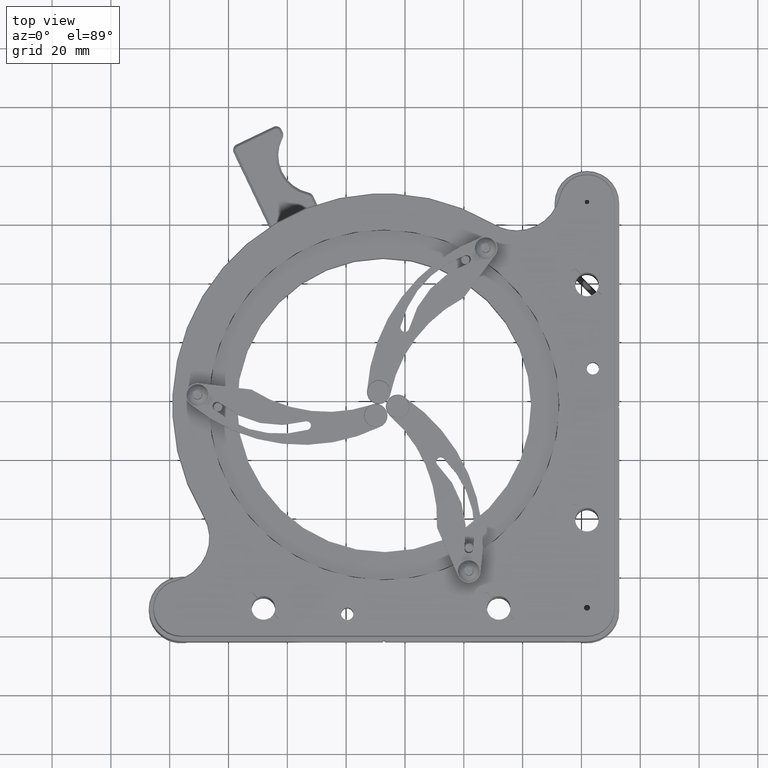
[diagram: clean part render]
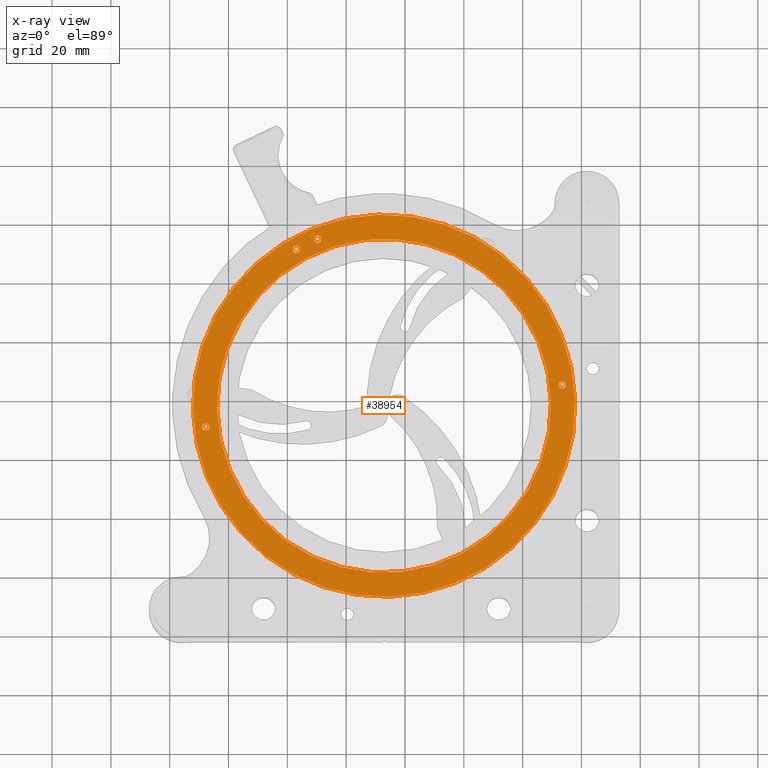
[diagram: x-ray — body ghosted, one internal face saturated and labeled with its STEP entity id]
A machine part, top view, then the same camera in x-ray: the body is ghosted and one INTERNAL B-rep face — a face not visible from any outside direction — is saturated and labeled: STEP entity #38954.
In plain terms, the highlighted planar face has unit normal (0, 0, 1).
Its self-contained STEP definition (entity closure, byte-faithful):
#751 = EDGE_CURVE ( 'NONE', #9092, #15603, #15009, .T. ) ;
#1564 = CARTESIAN_POINT ( 'NONE',  ( 32.86688447283686543, 17.71521029692000582, 86.03580865207221962 ) ) ;
#1645 = DIRECTION ( 'NONE',  ( 9.820066859581439095E-16, 9.806269261414737259E-16, 1.000000000000000000 ) ) ;
#1735 = EDGE_CURVE ( 'NONE', #36209, #17911, #30341, .T. ) ;
#2110 = CARTESIAN_POINT ( 'NONE',  ( 10.27804321067363169, 74.37863986514143733, 86.03580865207219119 ) ) ;
#2496 = ORIENTED_EDGE ( 'NONE', *, *, #10770, .T. ) ;
#2550 = AXIS2_PLACEMENT_3D ( 'NONE', #12315, #31280, #18973 ) ;
#2625 = CARTESIAN_POINT ( 'NONE',  ( 4.280903208637884205, 71.18947326408903109, 86.03580865207219119 ) ) ;
#2643 = EDGE_CURVE ( 'NONE', #15603, #9092, #9699, .T. ) ;
#3324 = EDGE_LOOP ( 'NONE', ( #39932, #5432 ) ) ;
#4244 = EDGE_CURVE ( 'NONE', #24883, #17596, #10600, .T. ) ;
#4585 = FACE_BOUND ( 'NONE', #34327, .T. ) ;
#4827 = DIRECTION ( 'NONE',  ( 9.820066859581441067E-16, 9.806269261414739231E-16, 1.000000000000000000 ) ) ;
#5391 = CARTESIAN_POINT ( 'NONE',  ( 32.86688447283686543, 17.71521029692000582, 86.03580865207221962 ) ) ;
#5432 = ORIENTED_EDGE ( 'NONE', *, *, #1735, .F. ) ;
#5774 = CARTESIAN_POINT ( 'NONE',  ( -22.69703668660957163, 6.173409510785222487, 86.03580865207229067 ) ) ;
#5994 = CIRCLE ( 'NONE', #26647, 1.250000000000000666 ) ;
#6244 = ORIENTED_EDGE ( 'NONE', *, *, #16076, .F. ) ;
#6297 = CARTESIAN_POINT ( 'NONE',  ( -27.71220787866536384, 10.56163986893342432, 86.03580865207229067 ) ) ;
#7426 = DIRECTION ( 'NONE',  ( 9.820066859581441067E-16, 9.806269261414739231E-16, 1.000000000000000000 ) ) ;
#7636 = VERTEX_POINT ( 'NONE', #25019 ) ;
#8155 = EDGE_CURVE ( 'NONE', #32746, #32842, #14379, .T. ) ;
#8349 = FACE_BOUND ( 'NONE', #3324, .T. ) ;
#8383 = AXIS2_PLACEMENT_3D ( 'NONE', #25791, #7426, #32636 ) ;
#8651 = DIRECTION ( 'NONE',  ( 9.820066859581441067E-16, 9.806269261414739231E-16, 1.000000000000000000 ) ) ;
#9092 = VERTEX_POINT ( 'NONE', #27556 ) ;
#9443 = DIRECTION ( 'NONE',  ( 0.9790999323250471065, 0.2033797495354149332, 0.000000000000000000 ) ) ;
#9699 = CIRCLE ( 'NONE', #30323, 56.75000000000001421 ) ;
#9733 = CARTESIAN_POINT ( 'NONE',  ( 1.833153377825263997, 70.68102389025050059, 86.03580865207219119 ) ) ;
#10600 = CIRCLE ( 'NONE', #19247, 1.249999999999997335 ) ;
#10601 = DIRECTION ( 'NONE',  ( 0.9790999323250472175, 0.2033797495354147111, -1.222712582186295490E-15 ) ) ;
#10770 = EDGE_CURVE ( 'NONE', #14162, #40114, #40701, .T. ) ;
#11201 = ORIENTED_EDGE ( 'NONE', *, *, #4244, .F. ) ;
#11675 = CARTESIAN_POINT ( 'NONE',  ( -30.77461112829120538, 4.495526577118052813, 86.03580865207229067 ) ) ;
#12315 = CARTESIAN_POINT ( 'NONE',  ( 93.44597682433911245, 24.86878072490658198, 86.03580865207214856 ) ) ;
#12777 = CARTESIAN_POINT ( 'NONE',  ( 11.50191812607993747, 74.63286455206070968, 86.03580865207219119 ) ) ;
#12975 = CARTESIAN_POINT ( 'NONE',  ( 93.44597682433911245, 24.86878072490658198, 86.03580865207214856 ) ) ;
#13032 = ORIENTED_EDGE ( 'NONE', *, *, #31035, .F. ) ;
#13332 = CARTESIAN_POINT ( 'NONE',  ( -28.93608279407167316, 10.30741518201415552, 86.03580865207229067 ) ) ;
#13840 = AXIS2_PLACEMENT_3D ( 'NONE', #5391, #30010, #20431 ) ;
#14162 = VERTEX_POINT ( 'NONE', #11675 ) ;
#14379 = CIRCLE ( 'NONE', #8383, 1.250000000000000666 ) ;
#14395 = FACE_BOUND ( 'NONE', #25787, .T. ) ;
#15009 = CIRCLE ( 'NONE', #16998, 56.75000000000001421 ) ;
#15320 = CARTESIAN_POINT ( 'NONE',  ( 96.50838007396492912, 30.93489401672196237, 86.03580865207214856 ) ) ;
#15603 = VERTEX_POINT ( 'NONE', #5774 ) ;
#16021 = CARTESIAN_POINT ( 'NONE',  ( 32.86688447283686543, 17.71521029692000582, 86.03580865207221962 ) ) ;
#16076 = EDGE_CURVE ( 'NONE', #25288, #7636, #36007, .T. ) ;
#16352 = AXIS2_PLACEMENT_3D ( 'NONE', #12975, #26310, #22779 ) ;
#16429 = DIRECTION ( 'NONE',  ( 9.820066859581441067E-16, 9.806269261414739231E-16, 1.000000000000000000 ) ) ;
#16998 = AXIS2_PLACEMENT_3D ( 'NONE', #24885, #34029, #34225 ) ;
#17596 = VERTEX_POINT ( 'NONE', #33750 ) ;
#17755 = ORIENTED_EDGE ( 'NONE', *, *, #40476, .F. ) ;
#17911 = VERTEX_POINT ( 'NONE', #38938 ) ;
#18973 = DIRECTION ( 'NONE',  ( 0.9790999323250471065, 0.2033797495354154883, 0.000000000000000000 ) ) ;
#19153 = DIRECTION ( 'NONE',  ( 0.9790999323250472175, 0.2033797495354147111, -1.067522139062650474E-15 ) ) ;
#19247 = AXIS2_PLACEMENT_3D ( 'NONE', #37777, #8651, #27405 ) ;
#19484 = CIRCLE ( 'NONE', #32789, 1.249999999999997335 ) ;
#19557 = ORIENTED_EDGE ( 'NONE', *, *, #31679, .F. ) ;
#19856 = DIRECTION ( 'NONE',  ( 9.820066859581441067E-16, 9.806269261414739231E-16, 1.000000000000000000 ) ) ;
#20431 = DIRECTION ( 'NONE',  ( 0.9790999323250472175, 0.2033797495354147111, -1.067522139062650474E-15 ) ) ;
#21178 = DIRECTION ( 'NONE',  ( 9.820066859581441067E-16, 9.806269261414739231E-16, 1.000000000000000000 ) ) ;
#21586 = EDGE_CURVE ( 'NONE', #17911, #36209, #28512, .T. ) ;
#22472 = ORIENTED_EDGE ( 'NONE', *, *, #8155, .F. ) ;
#22772 = AXIS2_PLACEMENT_3D ( 'NONE', #16021, #16429, #19153 ) ;
#22779 = DIRECTION ( 'NONE',  ( 0.9790999323250471065, 0.2033797495354154883, 0.000000000000000000 ) ) ;
#23052 = EDGE_CURVE ( 'NONE', #40114, #14162, #31134, .T. ) ;
#24883 = VERTEX_POINT ( 'NONE', #12777 ) ;
#24885 = CARTESIAN_POINT ( 'NONE',  ( 32.86688447283686543, 17.71521029692000582, 86.03580865207221962 ) ) ;
#24938 = AXIS2_PLACEMENT_3D ( 'NONE', #38578, #19856, #25483 ) ;
#25019 = CARTESIAN_POINT ( 'NONE',  ( -26.48833296325905451, 10.81586455585269135, 86.03580865207229067 ) ) ;
#25288 = VERTEX_POINT ( 'NONE', #13332 ) ;
#25390 = AXIS2_PLACEMENT_3D ( 'NONE', #6297, #21178, #9443 ) ;
#25483 = DIRECTION ( 'NONE',  ( 0.9790999323250471065, 0.2033797495354149332, 0.000000000000000000 ) ) ;
#25641 = EDGE_LOOP ( 'NONE', ( #27850, #2496 ) ) ;
#25787 = EDGE_LOOP ( 'NONE', ( #17755, #11201 ) ) ;
#25791 = CARTESIAN_POINT ( 'NONE',  ( 3.057028293231574434, 70.93524857716975873, 86.03580865207219119 ) ) ;
#26310 = DIRECTION ( 'NONE',  ( 9.820066859581441067E-16, 9.806269261414739231E-16, 1.000000000000000000 ) ) ;
#26647 = AXIS2_PLACEMENT_3D ( 'NONE', #36828, #30622, #27483 ) ;
#26903 = CARTESIAN_POINT ( 'NONE',  ( 32.86688447283686543, 17.71521029692000582, 86.03580865207221962 ) ) ;
#27112 = PLANE ( 'NONE',  #27369 ) ;
#27159 = DIRECTION ( 'NONE',  ( 0.9790999323250471065, 0.2033797495354154883, 0.000000000000000000 ) ) ;
#27369 = AXIS2_PLACEMENT_3D ( 'NONE', #26903, #1645, #39799 ) ;
#27405 = DIRECTION ( 'NONE',  ( 0.9790999323250471065, 0.2033797495354154883, 0.000000000000000000 ) ) ;
#27483 = DIRECTION ( 'NONE',  ( 0.9790999323250471065, 0.2033797495354149332, 0.000000000000000000 ) ) ;
#27556 = CARTESIAN_POINT ( 'NONE',  ( 88.43080563228330959, 29.25701108305479181, 86.03580865207214856 ) ) ;
#27723 = CARTESIAN_POINT ( 'NONE',  ( 94.66985173974541112, 25.12300541182585079, 86.03580865207214856 ) ) ;
#27850 = ORIENTED_EDGE ( 'NONE', *, *, #23052, .T. ) ;
#27948 = ORIENTED_EDGE ( 'NONE', *, *, #2643, .F. ) ;
#28512 = CIRCLE ( 'NONE', #2550, 1.249999999999997335 ) ;
#30010 = DIRECTION ( 'NONE',  ( 9.820066859581441067E-16, 9.806269261414739231E-16, 1.000000000000000000 ) ) ;
#30038 = FACE_BOUND ( 'NONE', #38333, .T. ) ;
#30323 = AXIS2_PLACEMENT_3D ( 'NONE', #1564, #32855, #10601 ) ;
#30341 = CIRCLE ( 'NONE', #16352, 1.249999999999997335 ) ;
#30622 = DIRECTION ( 'NONE',  ( 9.820066859581441067E-16, 9.806269261414739231E-16, 1.000000000000000000 ) ) ;
#31035 = EDGE_CURVE ( 'NONE', #32842, #32746, #5994, .T. ) ;
#31134 = CIRCLE ( 'NONE', #13840, 65.00000000000000000 ) ;
#31280 = DIRECTION ( 'NONE',  ( 9.820066859581441067E-16, 9.806269261414739231E-16, 1.000000000000000000 ) ) ;
#31679 = EDGE_CURVE ( 'NONE', #7636, #25288, #32236, .T. ) ;
#32236 = CIRCLE ( 'NONE', #24938, 1.250000000000000666 ) ;
#32636 = DIRECTION ( 'NONE',  ( 0.9790999323250471065, 0.2033797495354149332, 0.000000000000000000 ) ) ;
#32746 = VERTEX_POINT ( 'NONE', #2625 ) ;
#32789 = AXIS2_PLACEMENT_3D ( 'NONE', #2110, #4827, #27159 ) ;
#32842 = VERTEX_POINT ( 'NONE', #9733 ) ;
#32855 = DIRECTION ( 'NONE',  ( 9.820066859581441067E-16, 9.806269261414739231E-16, 1.000000000000000000 ) ) ;
#33746 = FACE_OUTER_BOUND ( 'NONE', #25641, .T. ) ;
#33750 = CARTESIAN_POINT ( 'NONE',  ( 9.054168295267325917, 74.12441517822217918, 86.03580865207219119 ) ) ;
#34029 = DIRECTION ( 'NONE',  ( 9.820066859581441067E-16, 9.806269261414739231E-16, 1.000000000000000000 ) ) ;
#34225 = DIRECTION ( 'NONE',  ( 0.9790999323250472175, 0.2033797495354147111, -1.222712582186295490E-15 ) ) ;
#34327 = EDGE_LOOP ( 'NONE', ( #6244, #19557 ) ) ;
#34329 = ORIENTED_EDGE ( 'NONE', *, *, #751, .F. ) ;
#36007 = CIRCLE ( 'NONE', #25390, 1.250000000000000666 ) ;
#36209 = VERTEX_POINT ( 'NONE', #27723 ) ;
#36665 = FACE_BOUND ( 'NONE', #38332, .T. ) ;
#36828 = CARTESIAN_POINT ( 'NONE',  ( 3.057028293231574434, 70.93524857716975873, 86.03580865207219119 ) ) ;
#37777 = CARTESIAN_POINT ( 'NONE',  ( 10.27804321067363169, 74.37863986514143733, 86.03580865207219119 ) ) ;
#38332 = EDGE_LOOP ( 'NONE', ( #34329, #27948 ) ) ;
#38333 = EDGE_LOOP ( 'NONE', ( #13032, #22472 ) ) ;
#38578 = CARTESIAN_POINT ( 'NONE',  ( -27.71220787866536384, 10.56163986893342432, 86.03580865207229067 ) ) ;
#38938 = CARTESIAN_POINT ( 'NONE',  ( 92.22210190893279957, 24.61455603798731318, 86.03580865207214856 ) ) ;
#38954 = ADVANCED_FACE ( 'NONE', ( #14395, #30038, #4585, #8349, #36665, #33746 ), #27112, .T. ) ;
#39799 = DIRECTION ( 'NONE',  ( 0.9790999323250471065, 0.2033797495354147111, -1.160922338390699014E-15 ) ) ;
#39932 = ORIENTED_EDGE ( 'NONE', *, *, #21586, .F. ) ;
#40114 = VERTEX_POINT ( 'NONE', #15320 ) ;
#40476 = EDGE_CURVE ( 'NONE', #17596, #24883, #19484, .T. ) ;
#40701 = CIRCLE ( 'NONE', #22772, 65.00000000000000000 ) ;